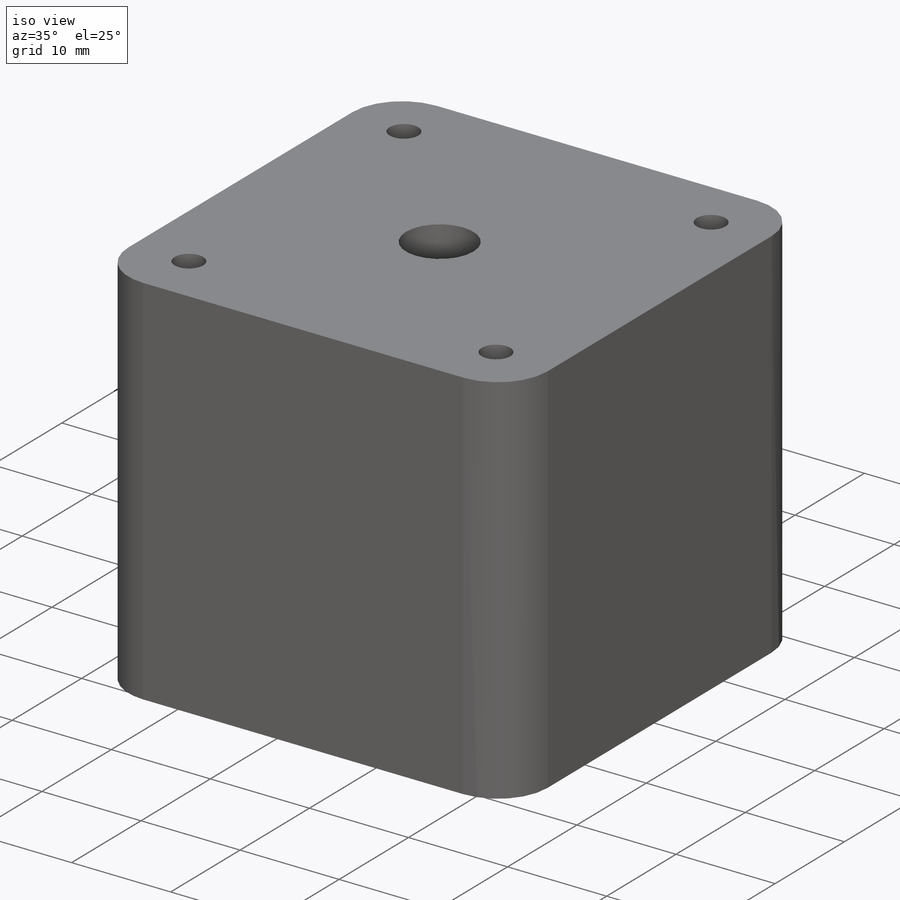
[diagram: iso view]
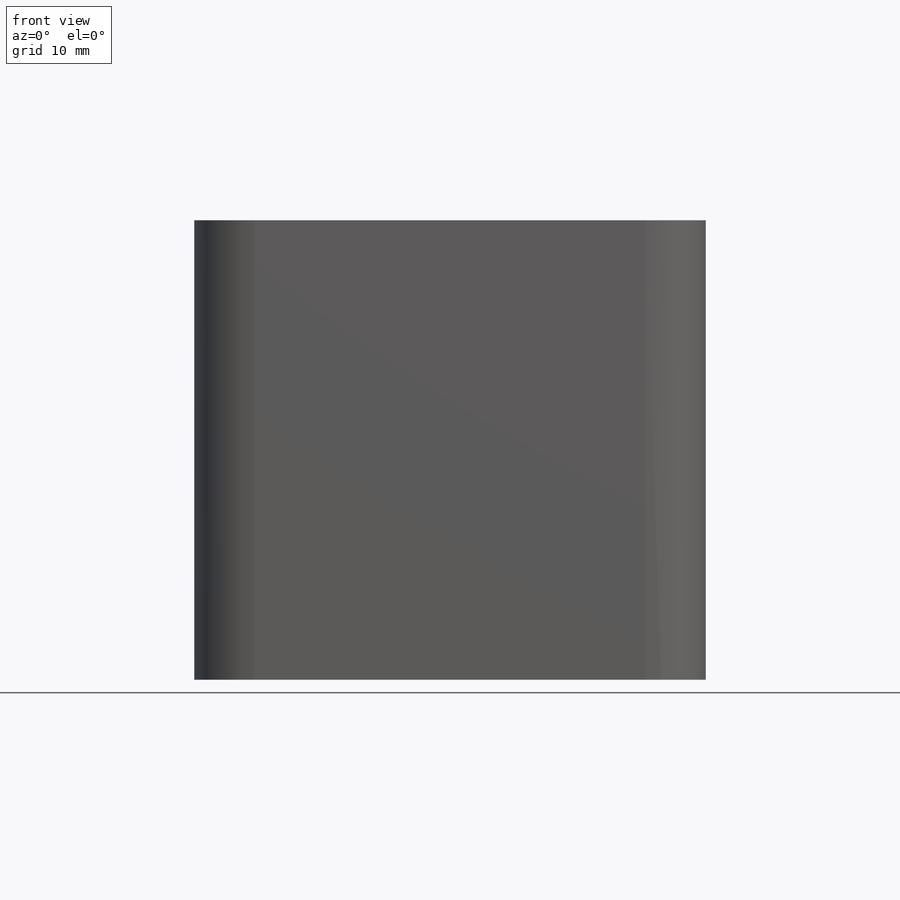
[diagram: front view]
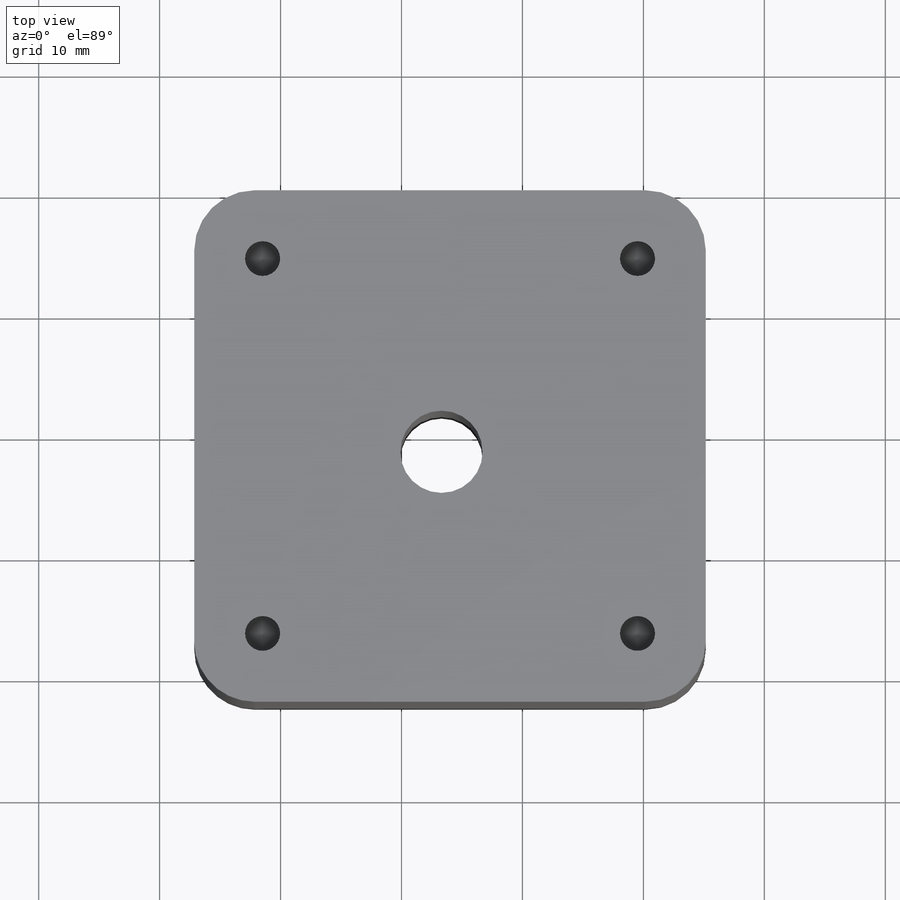
[diagram: top view]
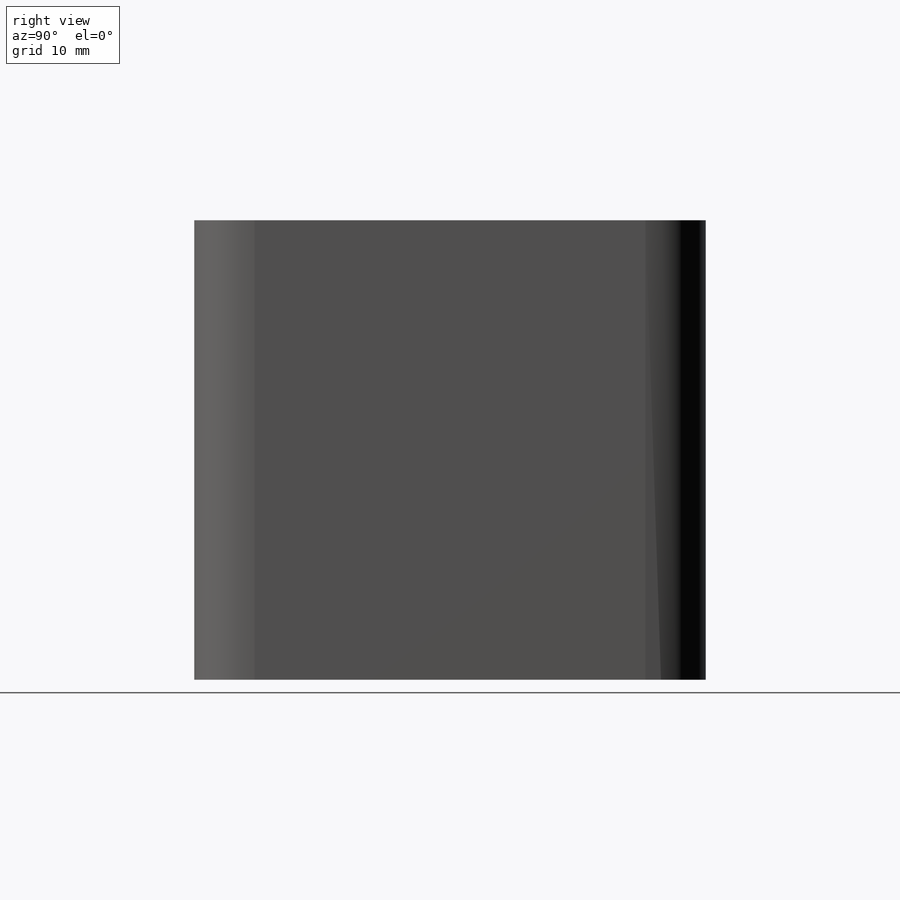
[diagram: right view]
SOLIDWORKS PART (.sldprt)
format: sldprt  version: not decoded by parser v0  size: 317,440 bytes
history: native  units: mm
features: sketch x6, thread x5, hole x2, material x1, extrude x1 (+13 scaffold rows collapsed)
feature tree (28):
  scaffold x13  (default folders/planes/origin — collapsed)
  material  "Material <not specified>"
  sketch  "Sketch2"  dims[D3=5.0mm D1=42.3mm D2=42.3mm]
  extrude  "Boss-Extrude1"  Depth=38mm
  sketch  "Sketch3"  dims[D1=31.0mm D2=31.0mm D3=15.5mm D4=15.5mm]
  hole  "M3.5x0.6 Tapped Hole2"  Diameter=2.9mm Depth=4.5mm
  sketch  "3DSketch2"
  sketch  "Sketch5"  dims[hole-wizard template sketch: 46 standard entries collapsed; hole parameters kept: c15.Tap Drill Dia.=2.9mm c15.Tap Drill Depth=4.5mm c15.D3=~14.816244mm c15.Drill Angle=118.0deg]
  thread  "Hole Thread5"  Diameter=4.5mm  [1 undecoded]
  thread  "Hole Thread6"  Diameter=4.5mm  [1 undecoded]
  thread  "Hole Thread7"  Diameter=4.5mm  [1 undecoded]
  thread  "Hole Thread8"  Diameter=4.5mm  [1 undecoded]
  hole  "M8 Tapped Hole1"  Diameter=6.8mm Depth=38mm
  sketch  "3DSketch12"
  sketch  "Sketch13"  dims[hole-wizard template sketch: 60 standard entries collapsed; hole parameters kept: c18.Thru Tap Drill Depth=38.0mm]
  thread  "Hole Thread9"  Diameter=8mm  [1 undecoded]
decode coverage: 12 of 14 modeling features carry decoded parameters
note: ~ marks probable driven/reference dimensions
note: 5 parameter values undecoded
note: suppression state not decoded; provenance and decode notes live in map.json
